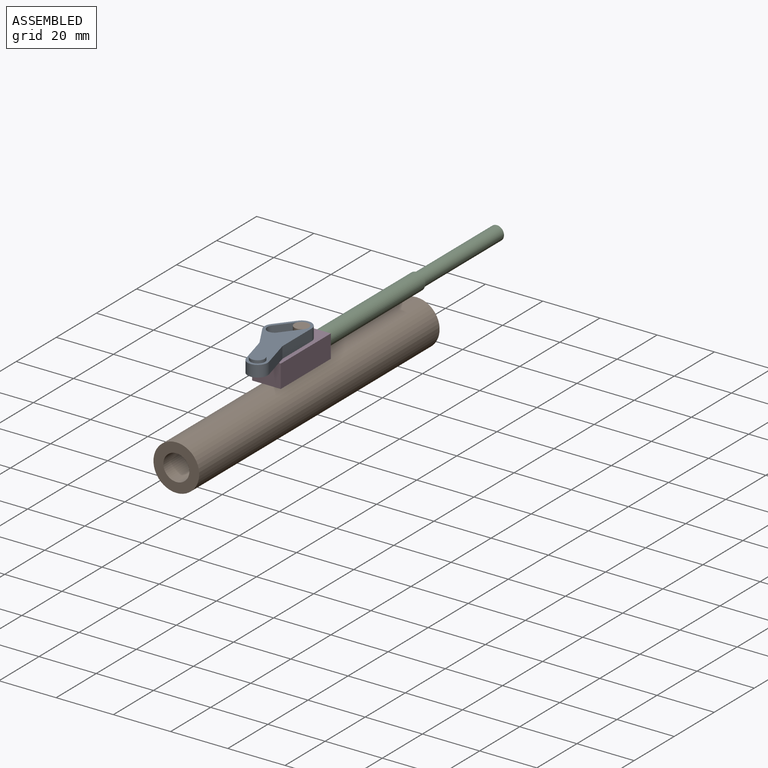
[diagram: assembled view]
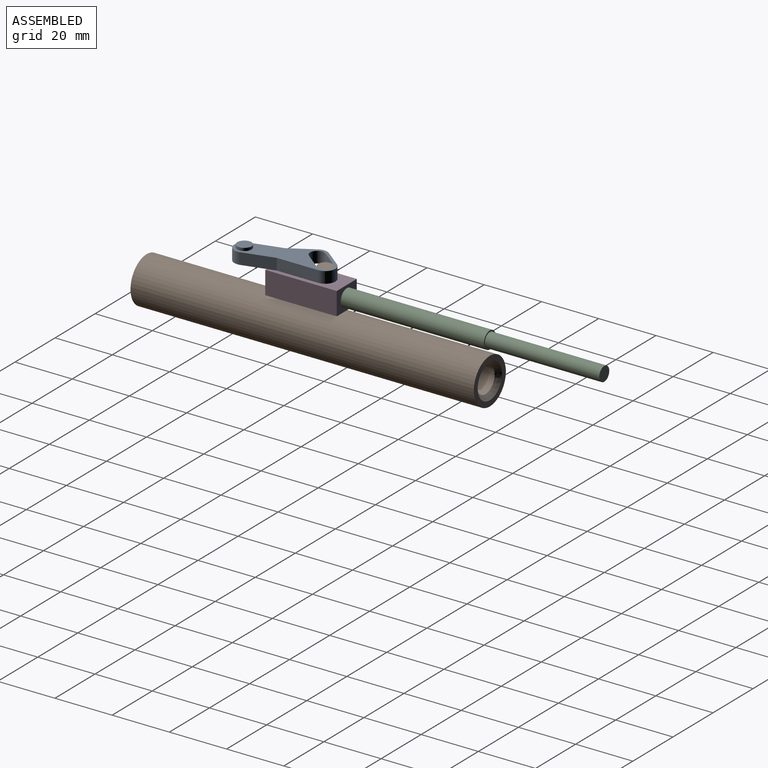
[diagram: assembled view, second angle]
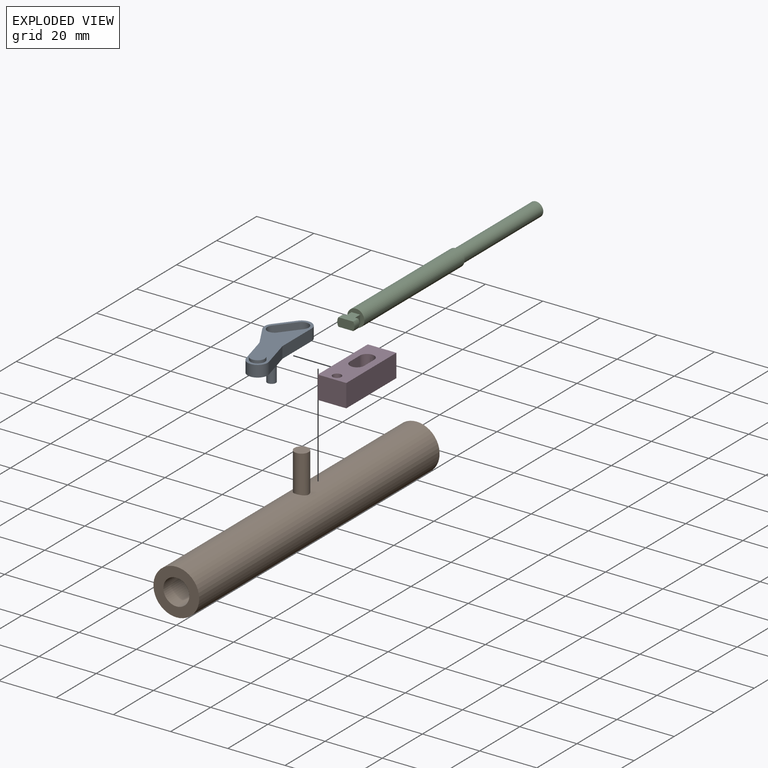
[diagram: exploded view]
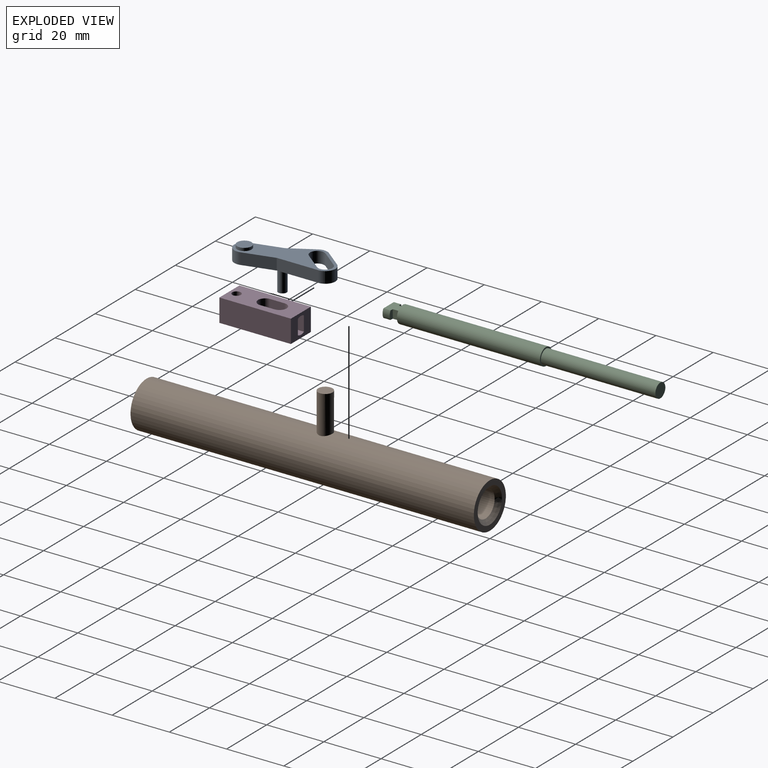
[diagram: exploded view, second angle]
ASSEMBLY  parts=4 mates=4
PART A: 18 faces, bbox 15x33.2x13 mm
  f0: cylinder r=2.5mm len=4.46mm, axis (0,0,-1), area 31.4mm2, adj f1,f10,f12,f13
  f1: plane 6.34x5mm, normal (-0.79,0.62,0), area 32.3mm2, adj f0,f2,f12,f13
  f2: cylinder r=2.5mm len=4.46mm, axis (0,0,-1), area 31.4mm2, adj f1,f10,f12,f13
  f3: cylinder r=3.5mm len=4mm, axis (0,0,-1), area 16.7mm2, adj f4,f11,f12,f13
  f4: plane 8.26x4.77mm, normal (-0.87,-0.5,0), area 38.2mm2, adj f3,f5,f12,f13
  f5: plane 10.75x4mm, normal (-0.97,-0.26,0), area 44.5mm2, adj f4,f6,f12,f13
  f6: cylinder r=3.5mm len=6.88mm, axis (0,0,-1), area 44mm2, adj f5,f7,f12,f13
  f7: plane 10.75x4mm, normal (0.97,0.26,0), area 44.5mm2, adj f6,f8,f12,f13
  f8: plane 14.54x4mm, normal (1,0,0), area 58.2mm2, adj f7,f9,f12,f13
  f9: cylinder r=3.5mm len=6.25mm, axis (0,0,-1), area 34.6mm2, adj f8,f11,f12,f13
  f10: plane 6.34x5mm, normal (0.79,-0.62,0), area 32.3mm2, adj f0,f2,f12,f13
  f11: plane 6.34x5mm, normal (-0.79,0.62,0), area 32.3mm2, adj f3,f9,f12,f13
  f12: plane 33.2x15mm, normal (0,0,1), area 193.2mm2, adj f0,f1,f2,f3,f4,f5,f6,f7
  f13: plane 33.2x15mm, normal (0,0,-1), area 205.8mm2, adj f0,f1,f2,f3,f4,f5,f6,f7
  f14: cylinder r=2.5mm len=5mm, axis (0,0,-1), area 15.7mm2, adj f12,f15
  f15: plane 5x5mm, normal (0,0,1), area 19.6mm2, adj f14
  f16: plane 3x3mm, normal (0,0,-1), area 7.1mm2, adj f17
  f17: cylinder r=1.5mm len=8mm, axis (0,0,-1), area 75.4mm2, adj f13,f16
PART B: 7 faces, bbox 16x120x29 mm
  f0: cylinder r=8mm len=120mm, axis (0,1,0), area 6012mm2, adj f1,f4,f5
  f1: plane 16x16mm, normal (0,-1,0), area 136mm2, adj f0,f2
  f2: cylinder r=4.55mm len=118.5mm, axis (0,1,0), area 3387.7mm2, adj f1,f3
  f3: cone r=6.05mm half-angle=45deg, axis (0,1,0), area 70.6mm2, adj f2,f4
  f4: plane 16x16mm, normal (0,1,0), area 86.1mm2, adj f0,f3
  f5: cylinder r=2.5mm len=13.4mm, axis (0,0,-1), area 207.3mm2, adj f0,f6
  f6: plane 5x5mm, normal (0,0,1), area 19.6mm2, adj f5
PART C: 14 faces, bbox 6x95x6 mm
  f0: plane 3x2.5mm, normal (-1,0,0), area 7.5mm2, adj f3,f5,f6,f11
  f1: plane 3x2.5mm, normal (1,0,0), area 7.5mm2, adj f3,f5,f6,f9
  f2: cylinder r=3mm len=50mm, axis (0,1,0), area 942.5mm2, adj f3,f4
  f3: plane 6x6mm, normal (0,-1,0), area 19.3mm2, adj f0,f1,f2,f5,f6
  f4: plane 6x6mm, normal (0,1,0), area 8.6mm2, adj f2,f12
  f5: plane 5.2x5mm, normal (0,0,1), area 20.5mm2, adj f0,f1,f3,f7,f8,f9,f10,f11
  f6: plane 5.2x5mm, normal (0,0,-1), area 20.5mm2, adj f0,f1,f3,f7,f8,f9,f10,f11
  f7: plane 6x3mm, normal (0,-1,0), area 17.2mm2, adj f5,f6,f8,f10
  f8: cylinder r=3mm len=3mm, axis (0,1,0), area 7.9mm2, adj f5,f6,f7,f9
  f9: plane 3x1.5mm, normal (0,1,0), area 4.1mm2, adj f1,f5,f6,f8
  f10: cylinder r=3mm len=3mm, axis (0,1,0), area 7.9mm2, adj f5,f6,f7,f11
  f11: plane 3x1.5mm, normal (0,1,0), area 4.1mm2, adj f0,f5,f6,f10
  f12: cylinder r=2.5mm len=40mm, axis (0,-1,0), area 628.3mm2, adj f4,f13
  f13: plane 5x5mm, normal (0,1,0), area 19.6mm2, adj f12
PART D: 21 faces, bbox 10x25x8 mm
  f0: plane 25x10mm, normal (0,0,1), area 198.3mm2, adj f7,f10,f12,f15,f16,f17,f18,f19
  f1: plane 25x10mm, normal (0,0,-1), area 198.3mm2, adj f7,f10,f12,f15,f16,f17,f18,f19
  f2: cylinder r=3mm len=5.1mm, axis (0,1,0), area 28.2mm2, adj f4,f5,f8,f9,f11,f12,f14,f19
  f3: cylinder r=3mm len=5.1mm, axis (0,1,0), area 28.2mm2, adj f4,f5,f6,f8,f9,f12,f13,f19
  f4: plane 5.83x2.3mm, normal (0,1,0), area 9.3mm2, adj f2,f3,f9,f14,f19
  f5: plane 5.83x2.3mm, normal (0,1,0), area 9.3mm2, adj f2,f3,f8,f13,f19
  f6: plane 4.1x1.5mm, normal (0,-1,0), area 4.8mm2, adj f3,f8,f13
  f7: plane 25x8mm, normal (-1,0,0), area 200mm2, adj f0,f1,f12,f15
  f8: plane 5.2x5.1mm, normal (1,0,0), area 15.8mm2, adj f2,f3,f5,f6,f12,f13
  f9: plane 5.2x5.1mm, normal (-1,0,0), area 15.8mm2, adj f2,f3,f4,f11,f12,f14
  f10: plane 25x8mm, normal (1,0,0), area 200mm2, adj f0,f1,f12,f15
  f11: plane 4.1x1.5mm, normal (0,-1,0), area 4.8mm2, adj f2,f9,f14
  f12: plane 10x8mm, normal (0,1,0), area 62.8mm2, adj f0,f1,f2,f3,f7,f8,f9,f10
  f13: plane 2.6x1.1mm, normal (0,0,1), area 2.9mm2, adj f3,f5,f6,f8
  f14: plane 2.6x1.1mm, normal (0,0,-1), area 2.9mm2, adj f2,f4,f9,f11
  f15: plane 10x8mm, normal (0,-1,0), area 80mm2, adj f0,f1,f7,f10
  f16: plane 8x5mm, normal (-1,0,0), area 40mm2, adj f0,f1,f18,f19
  f17: plane 8x5mm, normal (1,0,0), area 40mm2, adj f0,f1,f18,f19
  f18: cylinder r=2.5mm len=8mm, axis (0,0,1), area 62.8mm2, adj f0,f1,f16,f17
  f19: cylinder r=2.5mm len=8mm, axis (0,0,1), area 54.4mm2, adj f0,f1,f2,f3,f4,f5,f16,f17
  f20: cylinder r=1.5mm len=8mm, axis (0,0,1), area 75.4mm2, adj f0,f1
PLACE A t=(0,-72.5,17)mm
PLACE B at identity
PLACE C t=(0,0,13)mm
PLACE D t=(0,-50,0)mm
MATE pin_slot B.f5 <-> D.f19  axis (0,0,1) through (0,-57.5,21)mm
MATE revolute A.f17 <-> D.f20  axis (0,0,-1) through (0,-72.5,9)mm
MATE fastened C.f2 <-> D.f2  axis (0,-1,0) through (0,-50,13)mm
MATE pin_slot B.f5 <-> A.f0  axis (0,0,1) through (0,-57.5,21)mm
